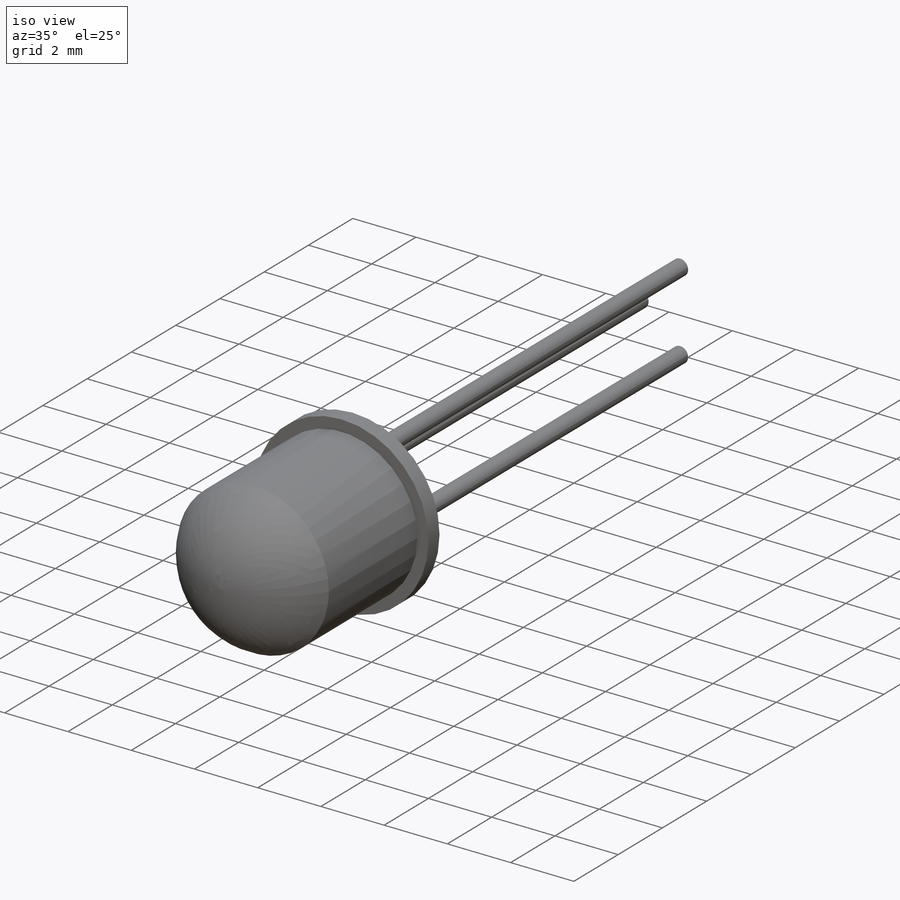
[diagram: iso view]
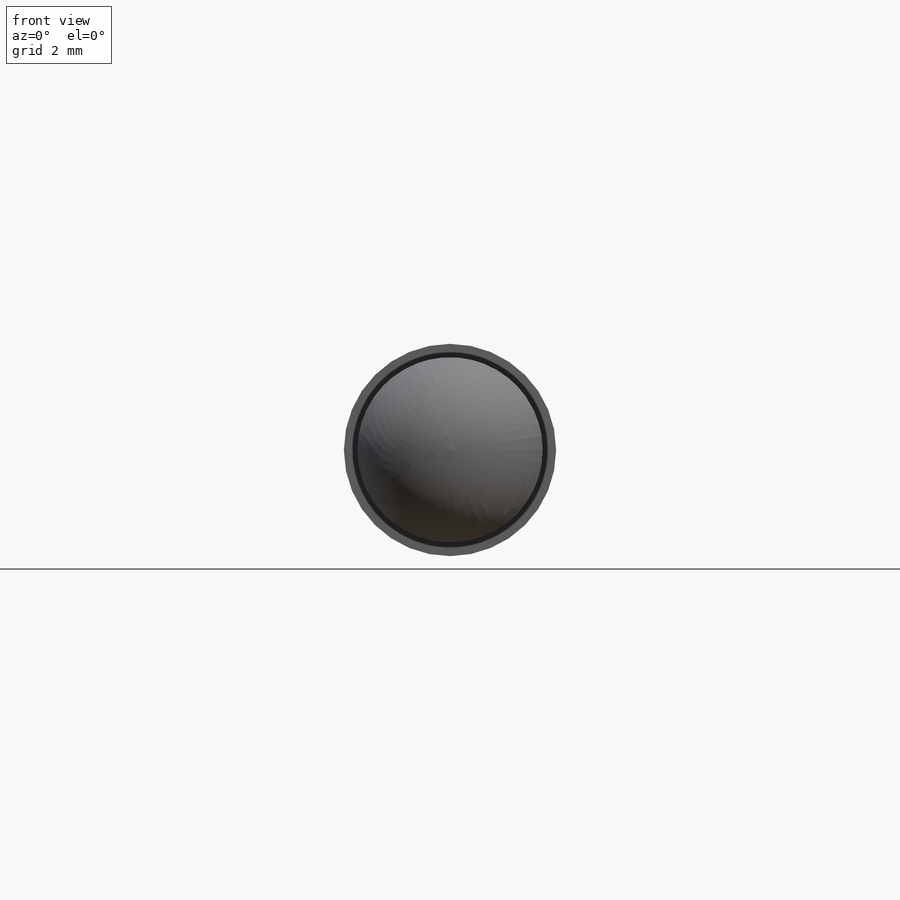
[diagram: front view]
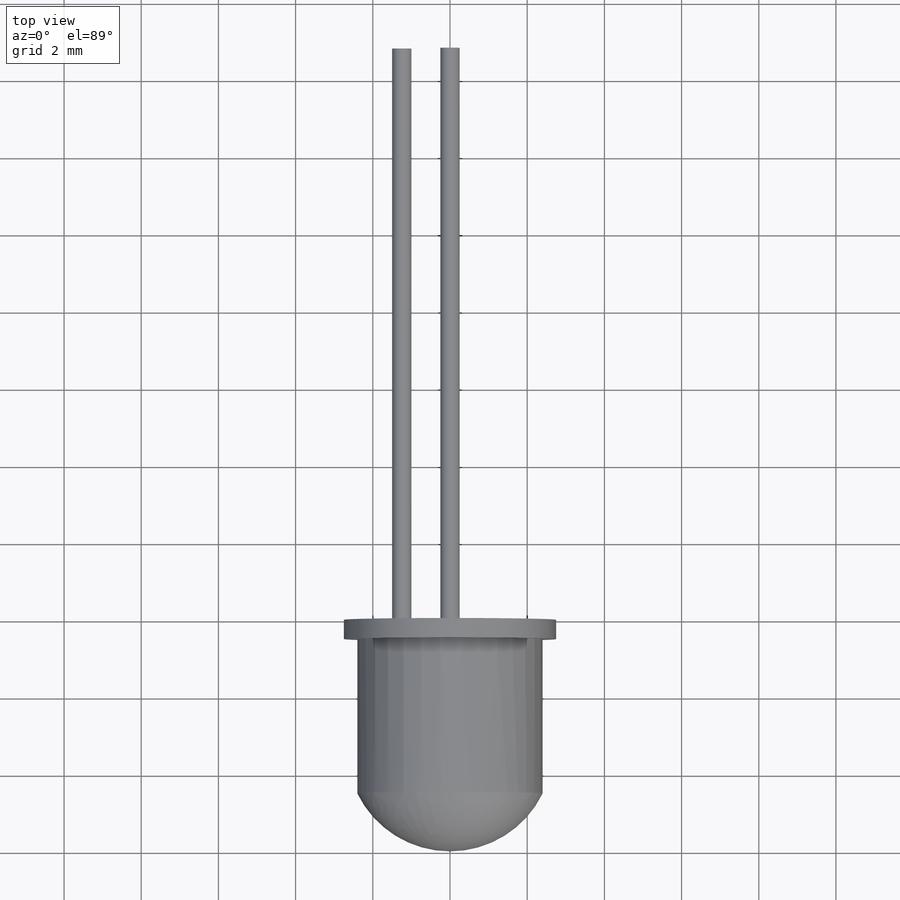
[diagram: top view]
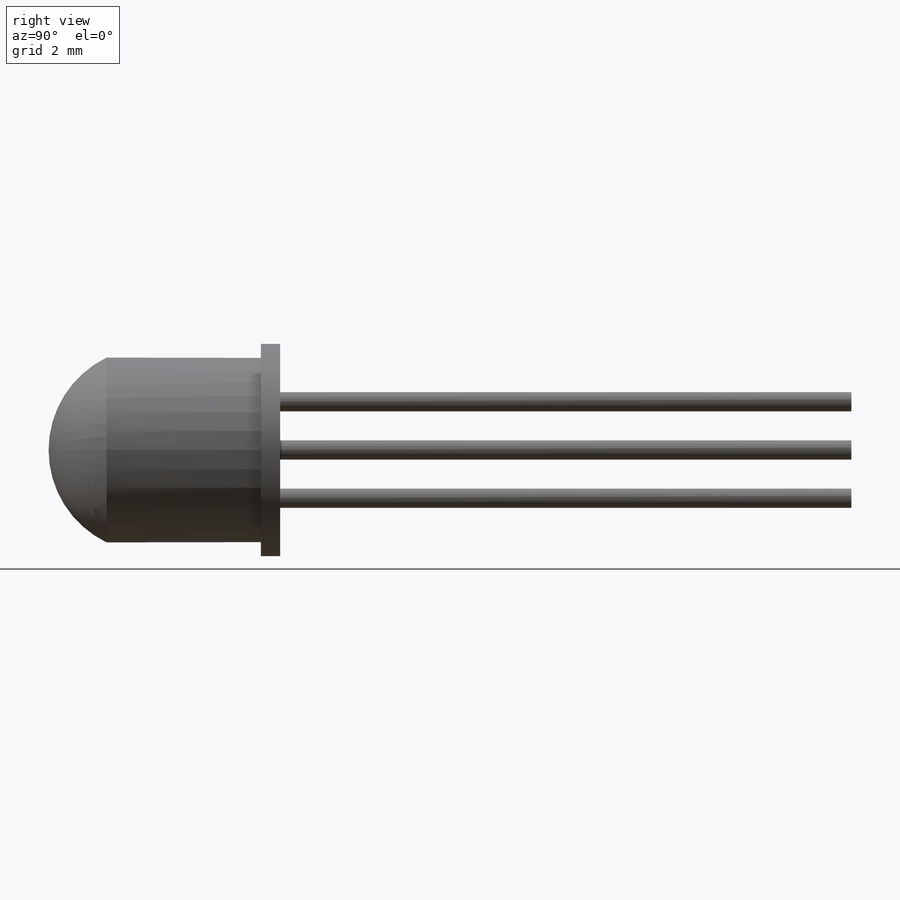
[diagram: right view]
SOLIDWORKS PART (.sldprt)
format: sldprt  version: not decoded by parser v0  size: 198,144 bytes
history: native  units: mm
features: sketch x4, extrude x3, material x1, dome x1, cut_extrude x1 (+11 scaffold rows collapsed)
feature tree (21):
  scaffold x11  (default folders/planes/origin — collapsed)
  material  "Material <not specified>"
  sketch  "Sketch2"  dims[D1=5.5mm]
  extrude  "Boss-Extrude2"  Depth=0.5mm
  sketch  "Sketch4"  dims[D1=~1.422614mm]
  extrude  "Boss-Extrude3"  Depth=4mm
  dome  "Dome1"
  sketch  "Sketch5"  dims[D1=~2.27197mm]
  cut_extrude  "Cut-Extrude1"  Depth=0.2mm
  sketch  "Sketch6"  dims[c1.D4=~0.214873mm c1.D1=~1.590406mm c1.D2=1.25mm c2.D1=1.25mm c2.D2=1.25mm c2.D3=1.25mm c2.D4=~0.757893mm]
  extrude  "Boss-Extrude4"  Depth=15mm
decode coverage: 8 of 9 modeling features carry decoded parameters
note: ~ marks probable driven/reference dimensions
note: suppression state not decoded; provenance and decode notes live in map.json
